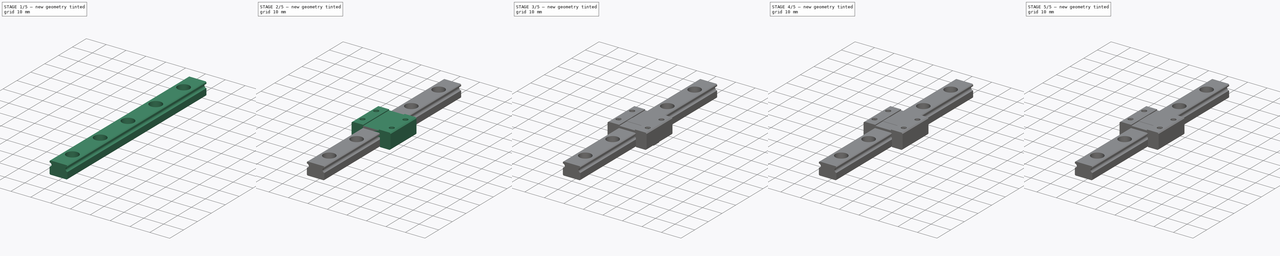
[diagram: build sequence overview — one tinted view per stage of 5, left to right]
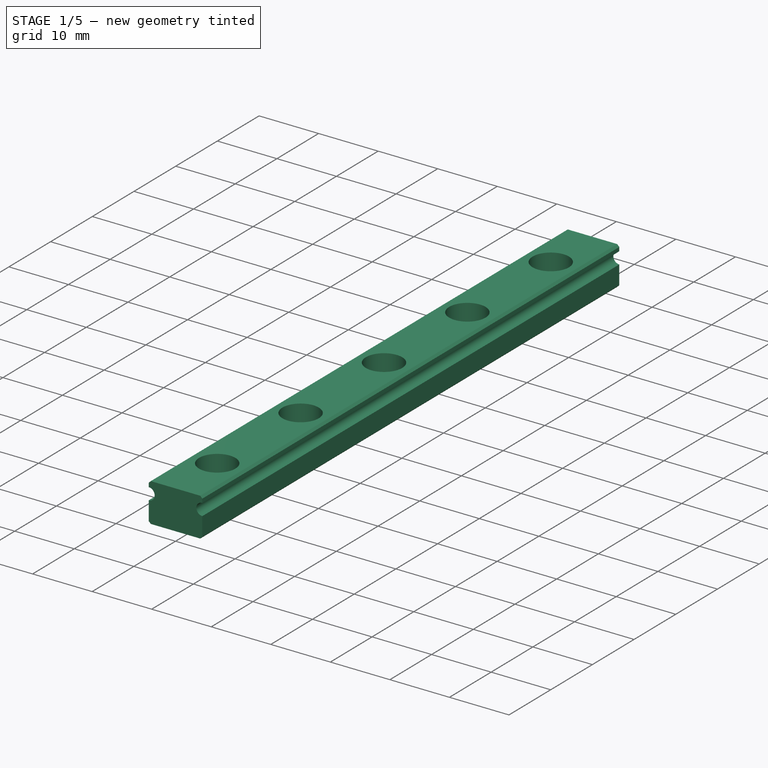
[diagram: stage 1 of 5 — iso view after this stage's code; geometry added in this stage tinted green]
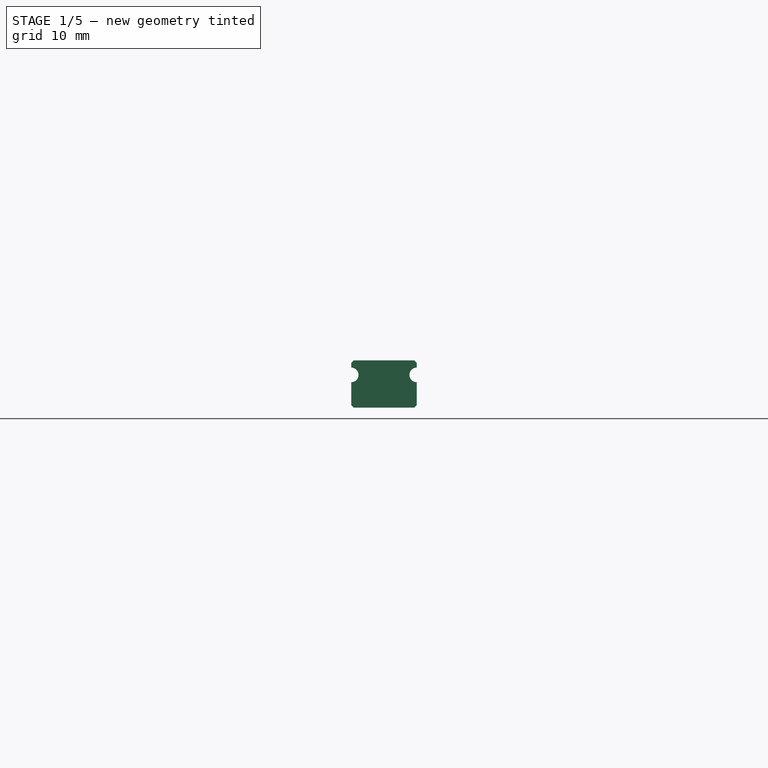
[diagram: stage 1 of 5 — front view after this stage's code; geometry added in this stage tinted green]
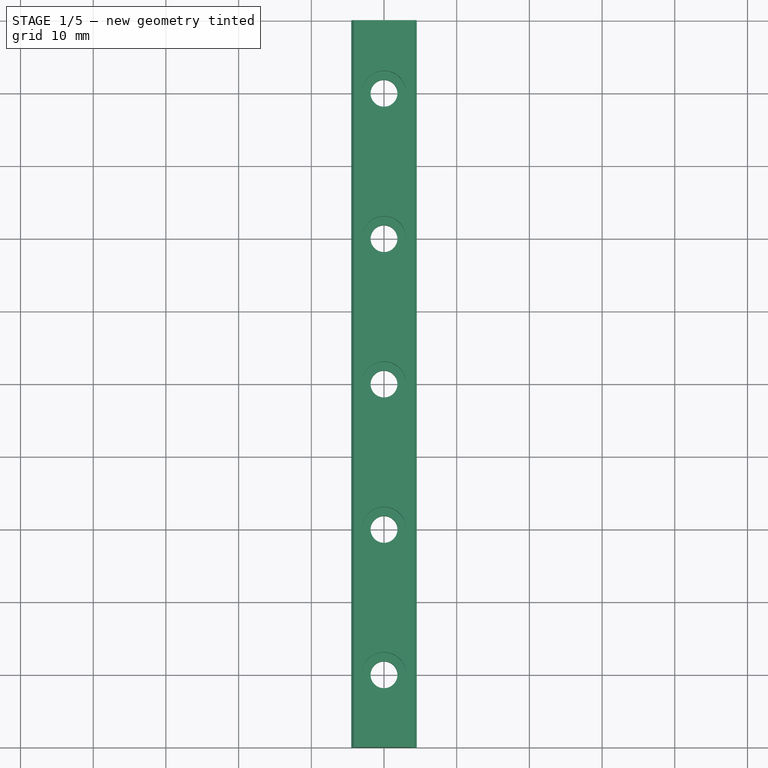
[diagram: stage 1 of 5 — top view after this stage's code; geometry added in this stage tinted green]
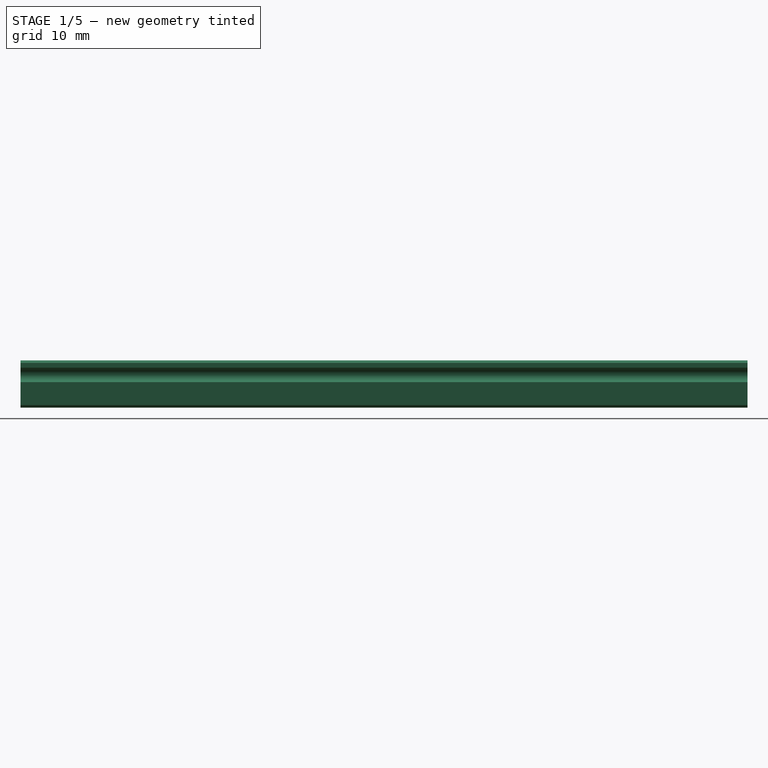
[diagram: stage 1 of 5 — right view after this stage's code; geometry added in this stage tinted green]
FCSTD DOCUMENT  (FreeCAD 0.20R29177 (Git))
Label: MGN9
License: All rights reserved
LicenseURL: http://en.wikipedia.org/wiki/All_rights_reserved
objects: PartDesign::Chamfer×7, PartDesign::Pad×6, PartDesign::Body×6, Sketcher::SketchObject×5, PartDesign::ShapeBinder×5, PartDesign::CoordinateSystem×4, App::DocumentObjectGroup×3, App::Part×3, PartDesign::Hole×2, App::Link×2, App::FeaturePython×1
note: 50 computed .brp shape members not serialized (recipe doc carries the construction recipe); baked Part::Feature solids carry a one-line shape summary decoded from their .brp

FEATURE [Sketcher::SketchObject] Sketch
  FullyConstrained = true
  MapMode = 5
  Placement = pos=(0,0,0) rot=(1,0,0;1.5708rad)
  Support = -> [XZ_Plane001]
  sketch-geometry (8):
    g0: LineSegment StartX=-4.5 StartY=6.5 StartZ=0 EndX=4.5 EndY=6.5 EndZ=0
    g1: LineSegment StartX=4.5 StartY=6.5 StartZ=0 EndX=4.5 EndY=5.5 EndZ=0
    g2: LineSegment StartX=4.5 StartY=0 StartZ=0 EndX=-4.5 EndY=0 EndZ=0
    g3: LineSegment StartX=-4.5 StartY=0 StartZ=0 EndX=-4.5 EndY=3.5 EndZ=0
    g4: ArcOfCircle CenterX=-4.5 CenterY=4.5 CenterZ=0 NormalX=0 NormalY=0 NormalZ=1 AngleXU=0 Radius=1 StartAngle=4.71239 EndAngle=7.85398
    g5: LineSegment StartX=-4.5 StartY=5.5 StartZ=0 EndX=-4.5 EndY=6.5 EndZ=0
    g6: ArcOfCircle CenterX=4.5 CenterY=4.5 CenterZ=0 NormalX=0 NormalY=0 NormalZ=1 AngleXU=0 Radius=1 StartAngle=1.5708 EndAngle=4.71239
    g7: LineSegment StartX=4.5 StartY=3.5 StartZ=0 EndX=4.5 EndY=0 EndZ=0
  constraints (22):
    c: Coincident(g0,g1)
    c: Coincident(g7,g2)
    c: Coincident(g2,g3)
    c: Coincident(g5,g0)
    c: Symmetric(g2,g7,g-2)
    c: Symmetric(g0,g0,g-2)
    c: Vertical(g3)
    c: DistanceX(g2,g2) = 9
    c: DistanceY(g3,g5) = 6.5
    c: PointOnObject(g2,g-1)
    c: PointOnObject(g4,g3)
    c: DistanceY(g-1,g4) = 4.5
    c: Radius(g4) = 1
    c: Coincident(g3,g4)
    c: Coincident(g5,g4)
    c: Vertical(g5)
    c: Vertical(g4,g3)
    c: PointOnObject(g6,g1)
    c: Coincident(g1,g6)
    c: Coincident(g7,g6)
    c: Symmetric(g4,g6,g-2)
    c: Symmetric(g3,g6,g-2)
FEATURE [Sketcher::SketchObject] Sketch001  label="UnitSketch"
  FullyConstrained = true
  MapMode = 5
  Placement = pos=(0,0,0) rot=(1,0,0;1.5708rad)
  Support = -> [XZ_Plane002]
  sketch-geometry (12):
    g0: LineSegment StartX=-10 StartY=8 StartZ=0 EndX=-4 EndY=8 EndZ=0
    g1: LineSegment StartX=10 StartY=8 StartZ=0 EndX=10 EndY=0 EndZ=0
    g2: LineSegment StartX=10 StartY=0 StartZ=0 EndX=4.5 EndY=0 EndZ=0
    g3: LineSegment StartX=-10 StartY=0 StartZ=0 EndX=-10 EndY=8 EndZ=0
    g4: LineSegment StartX=-4.5 StartY=4.5 StartZ=0 EndX=4.5 EndY=4.5 EndZ=0
    g5: LineSegment StartX=4.5 StartY=4.5 StartZ=0 EndX=4.5 EndY=0 EndZ=0
    g6: LineSegment StartX=-4.5 StartY=0 StartZ=0 EndX=-4.5 EndY=4.5 EndZ=0
    g7: LineSegment StartX=-4.5 StartY=0 StartZ=0 EndX=-10 EndY=0 EndZ=0
    g8: LineSegment StartX=4 StartY=8 StartZ=0 EndX=4 EndY=7.55 EndZ=0
    g9: LineSegment StartX=4 StartY=7.55 StartZ=0 EndX=-4 EndY=7.55 EndZ=0
    g10: LineSegment StartX=-4 StartY=7.55 StartZ=0 EndX=-4 EndY=8 EndZ=0
    g11: LineSegment StartX=4 StartY=8 StartZ=0 EndX=10 EndY=8 EndZ=0
  constraints (31):
    c: Coincident(g11,g1)
    c: Coincident(g1,g2)
    c: Coincident(g7,g3)
    c: Coincident(g3,g0)
    c: Symmetric(g7,g1,g-2)
    c: Symmetric(g0,g11,g-2)
    c: PointOnObject(g7,g-1)
    c: DistanceX(g7,g2) = 20
    c: DistanceY(g3,g3) = 8
    c: Vertical(g3)
    c: Coincident(g4,g5)
    c: Coincident(g6,g4)
    c: Horizontal(g4)
    c: Vertical(g5)
    c: Vertical(g6)
    c: Coincident(g2,g5)
    c: DistanceX(g6,g5) = 9
    c: DistanceY(g6,g6) = 4.5
    c: Symmetric(g6,g2,g-2)
    c: Coincident(g8,g9)
    c: Coincident(g9,g10)
    c: Coincident(g10,g0)
    c: Coincident(g8,g11)
    c: Symmetric(g0,g8,g-2)
    c: DistanceX(g9,g9) = 8
    c: Horizontal(g0)
    c: DistanceY(g10,g10) = 0.45
    c: Symmetric(g9,g8,g-2)
    c: Vertical(g10)
    c: Coincident(g7,g6)
    c: PointOnObject(g6,g-1)
FEATURE [Sketcher::SketchObject] Sketch002  label="CoverSketch"
  FullyConstrained = true
  MapMode = 5
  Placement = pos=(0,0,0) rot=(1,0,0;1.5708rad)
  Support = -> [XZ_Plane002]
  sketch-geometry (12):
    g0: LineSegment StartX=9.85 StartY=7.65 StartZ=0 EndX=9.85 EndY=0 EndZ=0
    g1: LineSegment StartX=9.85 StartY=0 StartZ=0 EndX=4.5 EndY=0 EndZ=0
    g2: LineSegment StartX=-9.85 StartY=0 StartZ=0 EndX=-9.85 EndY=7.65 EndZ=0
    g3: LineSegment StartX=-4.5 StartY=4.5 StartZ=0 EndX=4.5 EndY=4.5 EndZ=0
    g4: LineSegment StartX=4.5 StartY=4.5 StartZ=0 EndX=4.5 EndY=3.5 EndZ=0
    g5: LineSegment StartX=-4.5 StartY=0 StartZ=0 EndX=-4.5 EndY=1.5 EndZ=0
    g6: LineSegment StartX=-9.85 StartY=7.65 StartZ=0 EndX=9.85 EndY=7.65 EndZ=0
    g7: LineSegment StartX=-4.5 StartY=0 StartZ=0 EndX=-9.85 EndY=0 EndZ=0
    g8: ArcOfCircle CenterX=-4.5 CenterY=2.5 CenterZ=0 NormalX=0 NormalY=0 NormalZ=1 AngleXU=0 Radius=1 StartAngle=4.71239 EndAngle=7.85398
    g9: ArcOfCircle CenterX=4.5 CenterY=2.5 CenterZ=0 NormalX=0 NormalY=0 NormalZ=1 AngleXU=0 Radius=1 StartAngle=1.5708 EndAngle=4.71239
    g10: LineSegment StartX=-4.5 StartY=3.5 StartZ=0 EndX=-4.5 EndY=4.5 EndZ=0
    g11: LineSegment StartX=4.5 StartY=1.5 StartZ=0 EndX=4.5 EndY=0 EndZ=0
  constraints (32):
    c: Coincident(g6,g0)
    c: Coincident(g0,g1)
    c: Coincident(g7,g2)
    c: Vertical(g2)
    c: Coincident(g3,g4)
    c: Coincident(g10,g3)
    c: Vertical(g5)
    c: Coincident(g1,g11)
    c: Coincident(g5,g7)
    c: Symmetric(g2,g0,g-2)
    c: Symmetric(g5,g1,g-2)
    c: Symmetric(g3,g3,g-2)
    c: PointOnObject(g5,g-1)
    c: PointOnObject(g2,g-1)
    c: DistanceX(g3,g3) = 9
    c: DistanceY(g5,g10) = 4.5
    c: DistanceY(g2,g2) = 7.65
    c: Coincident(g6,g2)
    c: DistanceX(g6,g6) = 19.7
    c: Symmetric(g2,g0,g-2)
    c: PointOnObject(g8,g5)
    c: PointOnObject(g9,g4)
    c: Coincident(g5,g8)
    c: Coincident(g10,g8)
    c: Coincident(g4,g9)
    c: Coincident(g11,g9)
    c: Vertical(g8,g5)
    c: Vertical(g10)
    c: Symmetric(g8,g4,g-2)
    c: Symmetric(g9,g5,g-2)
    c: DistanceY(g5,g8) = 2.5
    c: Radius(g8) = 1
FEATURE [PartDesign::CoordinateSystem] LCS_Origin
  AttacherType = Attacher::AttachEngine3D
  MapMode = 2
  Support = -> [X_Axis008]
FEATURE [App::FeaturePython] Variables  # WARN: FeaturePython — macro-defined, semantics opaque (R4)
  Length = 100
  Position = 0
  Type = App::PropertyContainer
FEATURE [App::DocumentObjectGroup] Constraints
FEATURE [App::DocumentObjectGroup] Configurations
FEATURE [PartDesign::Pad] Pad
  Direction = (0,-1,-2e-16)
  Length = 100
  Length2 = 10
  Midplane = true
  Placement = pos=(0,0,0) rot=(1,0,0;1.5708rad)
  Profile = -> Sketch
  ReferenceAxis = -> Sketch [N_Axis]
  Type = 0
  expr: Length = <<Variables>>.Length
FEATURE [PartDesign::Body] Body002  label="Returner001"
  Group = -> [ShapeBinder001,Pad002,Chamfer002]
  Origin = -> Origin004
  Placement = pos=(0,9.4,0) rot=(0,0,1;0rad)
  Tip = -> Chamfer002
FEATURE [PartDesign::Chamfer] Chamfer003
  Angle = 45
  Base = -> Pad [Edge2,Edge11,Edge14,Edge1]
  BaseFeature = -> Pad
  ChamferType = 0
  FlipDirection = false
  Placement = pos=(0,0,0) rot=(1,0,0;1.5708rad)
  Size = 0.35
  Size2 = 1
  SupportTransform = false
  UseAllEdges = false
FEATURE [PartDesign::Body] Body001  label="UnitBody"
  Group = -> [ShapeBinder,Pad001,Chamfer001,Sketch003,Hole]
  Origin = -> Origin003
  Tip = -> Hole
FEATURE [PartDesign::CoordinateSystem] LCS_RailPartOrigin
  AttacherType = Attacher::AttachEngine3D
  MapMode = 3
  Placement = pos=(0,0,0) rot=(0,0,-1;1.5708rad)
  Support = -> [Y_Axis]
FEATURE [PartDesign::CoordinateSystem] LCS_RailPartTop
  AttacherType = Attacher::AttachEngine3D
  AttachmentOffset = pos=(0,0,6.5) rot=(0,0,1;0rad)
  MapMode = 3
  Placement = pos=(-7e-16,7e-16,6.5) rot=(0,0,-1;1.5708rad)
  Support = -> [Y_Axis]
FEATURE [PartDesign::CoordinateSystem] LCS_UnitPartOrigin
  AttacherType = Attacher::AttachEngine3D
  AttachmentOffset = pos=(0,0,4.5) rot=(0,0,1;0rad)
  MapMode = 3
  Placement = pos=(-5e-16,5e-16,4.5) rot=(0,0,-1;1.5708rad)
  Support = -> [Y_Axis002]
FEATURE [App::Part] Part001  label="Unit"
  Group = -> [Sketch001,Sketch002,Body001,Body002,Body003,Body004,Body005,LCS_UnitPartOrigin]
  Origin = -> Origin002
FEATURE [App::Link] Rail  label="Rail001"
  AssemblyType = Part::Link
  AttachedBy = #LCS_RailPartOrigin
  AttachedTo = Parent Assembly#LCS_Origin
  LinkPlacement = pos=(0,0,0) rot=(0,0,1;1.5708rad)
  LinkedObject = -> Part
  Placement = pos=(0,0,0) rot=(0,0,1;1.5708rad)
  SolverId = Asm4EE
  expr: Placement = LCS_Origin.Placement * AttachmentOffset * LCS_RailPartOrigin.Placement ^ -1
FEATURE [App::Link] Unit  label="Unit001"
  AssemblyType = Part::Link
  AttachedBy = #LCS_UnitPartOrigin
  AttachedTo = Rail#LCS_RailPartTop
  LinkPlacement = pos=(0,0,2) rot=(0,0,1;1.5708rad)
  LinkedObject = -> Part001
  Placement = pos=(0,0,2) rot=(0,0,1;1.5708rad)
  SolverId = Asm4EE
  expr: .AttachmentOffset.Base.x = <<Variables>>.Position
  expr: Placement = Rail.Placement * LCS_RailPartTop.Placement * AttachmentOffset * LCS_UnitPartOrigin.Placement ^ -1
FEATURE [App::Part] Assembly
  AssemblyType = Part::Link
  Group = -> [LCS_Origin,Variables,Constraints,Configurations,Rail,Unit]
  Origin = -> Origin008
  Type = Assembly
FEATURE [Sketcher::SketchObject] Sketch004
  AttachmentOffset = pos=(0,0,-6.5) rot=(0,0,1;0rad)
  FullyConstrained = true
  MapMode = 3
  Placement = pos=(-7e-16,7e-16,6.5) rot=(0.707107,0.707107,0;3.14159rad)
  Support = -> [Y_Axis001]
  sketch-geometry (19):
    g0: Circle CenterX=0 CenterY=0 CenterZ=0 NormalX=0 NormalY=0 NormalZ=1 AngleXU=0 Radius=1.5
    g1: Circle CenterX=-20 CenterY=0 CenterZ=0 NormalX=0 NormalY=0 NormalZ=1 AngleXU=0 Radius=1.5
    g2: Circle CenterX=-40 CenterY=0 CenterZ=0 NormalX=0 NormalY=0 NormalZ=1 AngleXU=0 Radius=1.5
    g3: Circle CenterX=-60 CenterY=0 CenterZ=0 NormalX=0 NormalY=0 NormalZ=1 AngleXU=0 Radius=1.5
    g4: Circle CenterX=-80 CenterY=0 CenterZ=0 NormalX=0 NormalY=0 NormalZ=1 AngleXU=0 Radius=1.5
    g5: Circle CenterX=-100 CenterY=0 CenterZ=0 NormalX=0 NormalY=0 NormalZ=1 AngleXU=0 Radius=1.5
    g6: Circle CenterX=-120 CenterY=0 CenterZ=0 NormalX=0 NormalY=0 NormalZ=1 AngleXU=0 Radius=1.5
    g7: Circle CenterX=-140 CenterY=0 CenterZ=0 NormalX=0 NormalY=0 NormalZ=1 AngleXU=0 Radius=1.5
    g8: Circle CenterX=-160 CenterY=0 CenterZ=0 NormalX=0 NormalY=0 NormalZ=1 AngleXU=0 Radius=1.5
    g9: Circle CenterX=-180 CenterY=0 CenterZ=0 NormalX=0 NormalY=0 NormalZ=1 AngleXU=0 Radius=1.5
    g10: Circle CenterX=20 CenterY=0 CenterZ=0 NormalX=0 NormalY=0 NormalZ=1 AngleXU=0 Radius=1.5
    g11: Circle CenterX=40 CenterY=0 CenterZ=0 NormalX=0 NormalY=0 NormalZ=1 AngleXU=0 Radius=1.5
    g12: Circle CenterX=60 CenterY=0 CenterZ=0 NormalX=0 NormalY=0 NormalZ=1 AngleXU=0 Radius=1.5
    g13: Circle CenterX=80 CenterY=0 CenterZ=0 NormalX=0 NormalY=0 NormalZ=1 AngleXU=0 Radius=1.5
    g14: Circle CenterX=100 CenterY=0 CenterZ=0 NormalX=0 NormalY=0 NormalZ=1 AngleXU=0 Radius=1.5
    g15: Circle CenterX=120 CenterY=0 CenterZ=0 NormalX=0 NormalY=0 NormalZ=1 AngleXU=0 Radius=1.5
    g16: Circle CenterX=140 CenterY=0 CenterZ=0 NormalX=0 NormalY=0 NormalZ=1 AngleXU=0 Radius=1.5
    g17: Circle CenterX=160 CenterY=0 CenterZ=0 NormalX=0 NormalY=0 NormalZ=1 AngleXU=0 Radius=1.5
    g18: Circle CenterX=180 CenterY=0 CenterZ=0 NormalX=0 NormalY=0 NormalZ=1 AngleXU=0 Radius=1.5
  constraints (30):
    c: PointOnObject(g1,g-1)
    c: PointOnObject(g2,g-1)
    c: PointOnObject(g3,g-1)
    c: PointOnObject(g4,g-1)
    c: PointOnObject(g5,g-1)
    c: PointOnObject(g6,g-1)
    c: PointOnObject(g7,g-1)
    c: PointOnObject(g8,g-1)
    c: PointOnObject(g9,g-1)
    c: Equal(g0, g1-g18) x18
    c: Diameter(g0) = 3
    c: Symmetric(g9,g18,g-2)
    c: Symmetric(g8,g17,g-2)
    c: DistanceX(g9,g8) = 20
    c: Symmetric(g7,g16,g-2)
    c: DistanceX(g8,g7) = 20
    c: Symmetric(g6,g15,g-2)
    c: DistanceX(g7,g6) = 20
    c: Symmetric(g14,g5,g-2)
    c: DistanceX(g6,g5) = 20
    c: Symmetric(g4,g13,g-2)
    c: DistanceX(g5,g4) = 20
    c: Symmetric(g12,g3,g-2)
    c: DistanceX(g4,g3) = 20
    c: Symmetric(g11,g2,g-2)
    c: DistanceX(g3,g2) = 20
    c: Symmetric(g10,g1,g-2)
    c: DistanceX(g2,g1) = 20
    c: DistanceX(g1,g0) = 20
    c: Coincident(g0,g-1)
FEATURE [PartDesign::Hole] Hole001
  BaseFeature = -> Chamfer003
  CustomThreadClearance = 0
  Depth = 733.603
  DepthType = 1
  Diameter = 3.7
  DrillForDepth = false
  DrillPoint = 1
  DrillPointAngle = 118
  HoleCutCountersinkAngle = 90
  HoleCutCustomValues = false
  HoleCutDepth = 3.06
  HoleCutDiameter = 6.1
  HoleCutType = 1
  ModelThread = false
  Placement = pos=(0,0,0) rot=(1,0,0;1.5708rad)
  Profile = -> Sketch004
  Reversed = true
  Tapered = false
  TaperedAngle = 90
  ThreadClass = 0
  ThreadDepth = 733.603
  ThreadDepthType = 0
  ThreadDirection = 0
  ThreadFit = 0
  ThreadSize = 0
  ThreadType = 0
  Threaded = false
  UseCustomThreadClearance = false
FEATURE [PartDesign::Body] Body  label="RailBody"
  Group = -> [Sketch,Pad,Sketch004,Chamfer003,Hole001]
  Origin = -> Origin001
  Tip = -> Hole001
FEATURE [App::Part] Part  label="Rail"
  Group = -> [Body,LCS_RailPartOrigin,LCS_RailPartTop]
  Origin = -> Origin
FEATURE [App::DocumentObjectGroup] Parts
  Group = -> [Part,Part001]
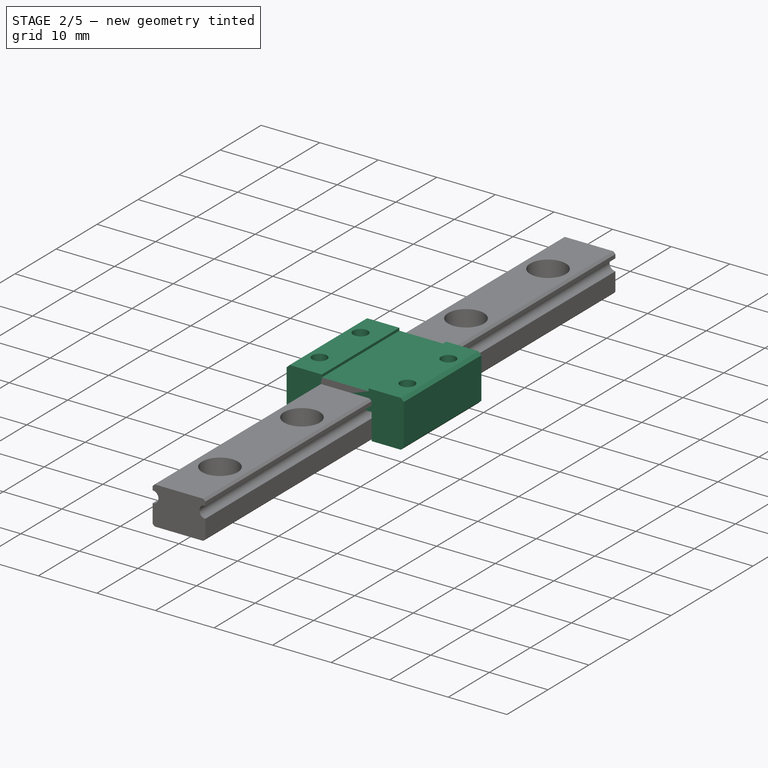
[diagram: stage 2 of 5 — iso view after this stage's code; geometry added in this stage tinted green]
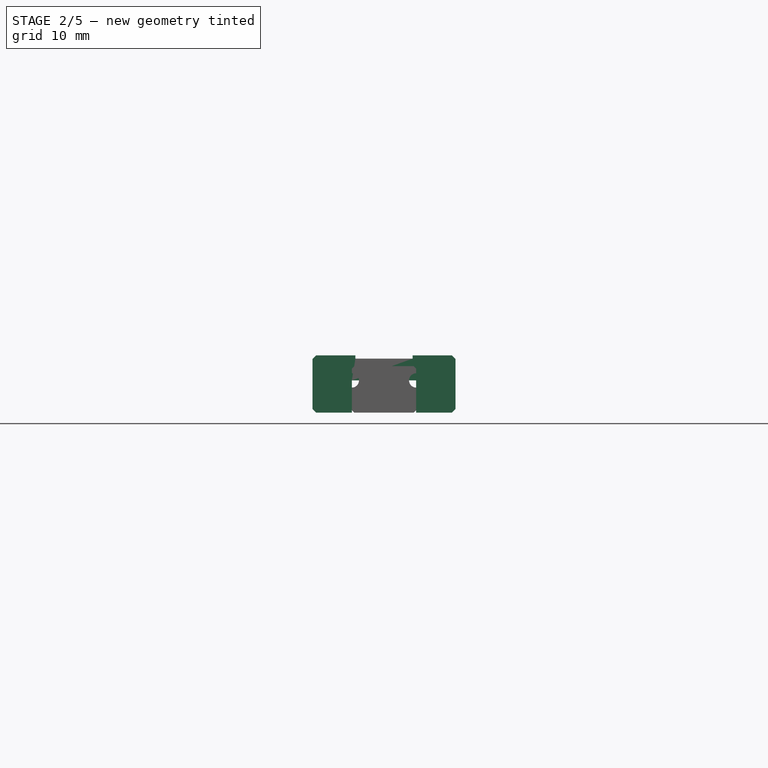
[diagram: stage 2 of 5 — front view after this stage's code; geometry added in this stage tinted green]
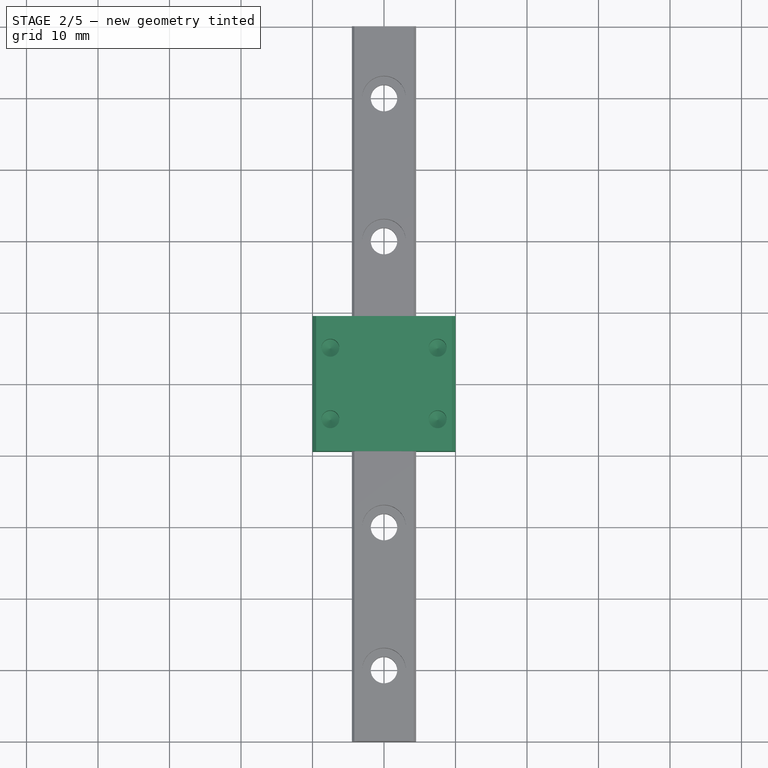
[diagram: stage 2 of 5 — top view after this stage's code; geometry added in this stage tinted green]
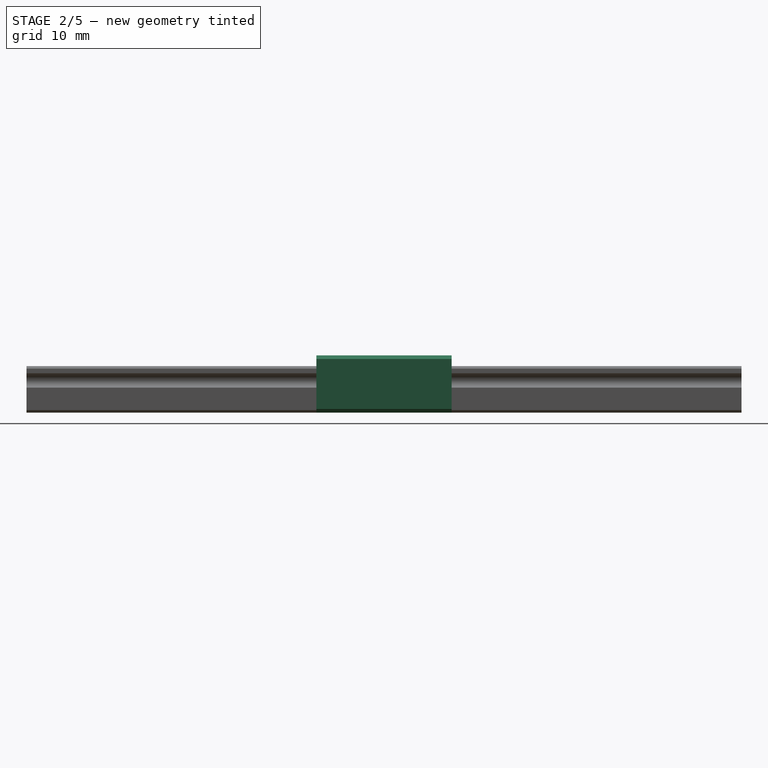
[diagram: stage 2 of 5 — right view after this stage's code; geometry added in this stage tinted green]
FEATURE [PartDesign::ShapeBinder] ShapeBinder
  Placement = pos=(0,0,0) rot=(1,0,0;1.5708rad)
  Support = -> [Sketch001]
  TraceSupport = false
FEATURE [PartDesign::Pad] Pad001
  Direction = (0,1,2e-16)
  Length = 18.9
  Length2 = 10
  Midplane = true
  Placement = pos=(0,0,0) rot=(1,0,0;1.5708rad)
  Profile = -> ShapeBinder
  Type = 0
FEATURE [PartDesign::Chamfer] Chamfer001
  Angle = 45
  Base = -> Pad001 [Edge5,Edge20,Edge23,Edge2]
  BaseFeature = -> Pad001
  ChamferType = 0
  FlipDirection = false
  Placement = pos=(0,0,0) rot=(1,0,0;1.5708rad)
  Size = 0.5
  Size2 = 1
  SupportTransform = false
  UseAllEdges = false
FEATURE [PartDesign::Body] Body005  label="wiper002"
  Group = -> [ShapeBinder004,Pad005,Chamfer006]
  Origin = -> Origin007
  Placement = pos=(0,-13.4,0) rot=(0,0,1;0rad)
  Tip = -> Chamfer006
FEATURE [Sketcher::SketchObject] Sketch003
  FullyConstrained = true
  MapMode = 5
  Placement = pos=(0,1.8e-15,8) rot=(0,0,1;3.14159rad)
  Support = -> [Chamfer001]
  sketch-geometry (4):
    g0: Circle CenterX=-7.5 CenterY=5 CenterZ=0 NormalX=0 NormalY=0 NormalZ=1 AngleXU=0 Radius=1.5
    g1: Circle CenterX=7.5 CenterY=5 CenterZ=0 NormalX=0 NormalY=0 NormalZ=1 AngleXU=0 Radius=1.5
    g2: Circle CenterX=-7.5 CenterY=-5 CenterZ=0 NormalX=0 NormalY=0 NormalZ=1 AngleXU=0 Radius=1.5
    g3: Circle CenterX=7.5 CenterY=-5 CenterZ=0 NormalX=0 NormalY=0 NormalZ=1 AngleXU=0 Radius=1.5
  constraints (9):
    c: Symmetric(g0,g2,g-1)
    c: Symmetric(g0,g1,g-2)
    c: Symmetric(g2,g3,g-2)
    c: DistanceY(g2,g0) = 10
    c: DistanceX(g0,g1) = 15
    c: Equal(g0,g1)
    c: Equal(g0,g2)
    c: Equal(g0,g3)
    c: Diameter(g0) = 3
FEATURE [PartDesign::Hole] Hole
  BaseFeature = -> Chamfer001
  CustomThreadClearance = 0
  Depth = 4.4
  DepthType = 0
  Diameter = 2.5
  DrillForDepth = false
  DrillPoint = 1
  DrillPointAngle = 118
  HoleCutCountersinkAngle = 90
  HoleCutCustomValues = false
  HoleCutDepth = 0
  HoleCutDiameter = 6.1
  HoleCutType = 0
  ModelThread = false
  Placement = pos=(0,0,0) rot=(1,0,0;1.5708rad)
  Profile = -> Sketch003
  Tapered = false
  TaperedAngle = 90
  ThreadClass = 0
  ThreadDepth = 4.4
  ThreadDepthType = 0
  ThreadDirection = 0
  ThreadFit = 0
  ThreadSize = 9
  ThreadType = 1
  Threaded = true
  UseCustomThreadClearance = false
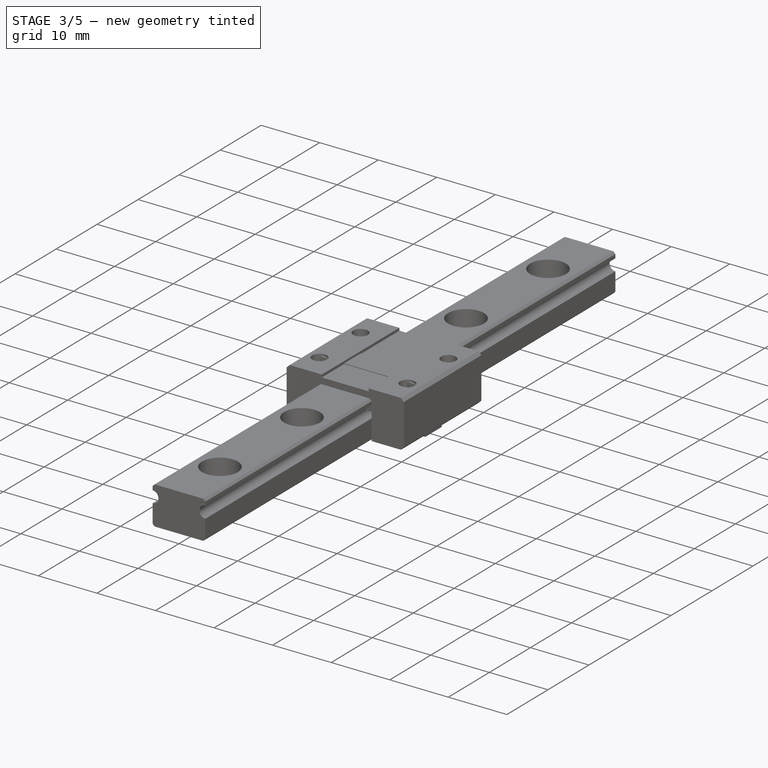
[diagram: stage 3 of 5 — iso view after this stage's code; geometry added in this stage tinted green]
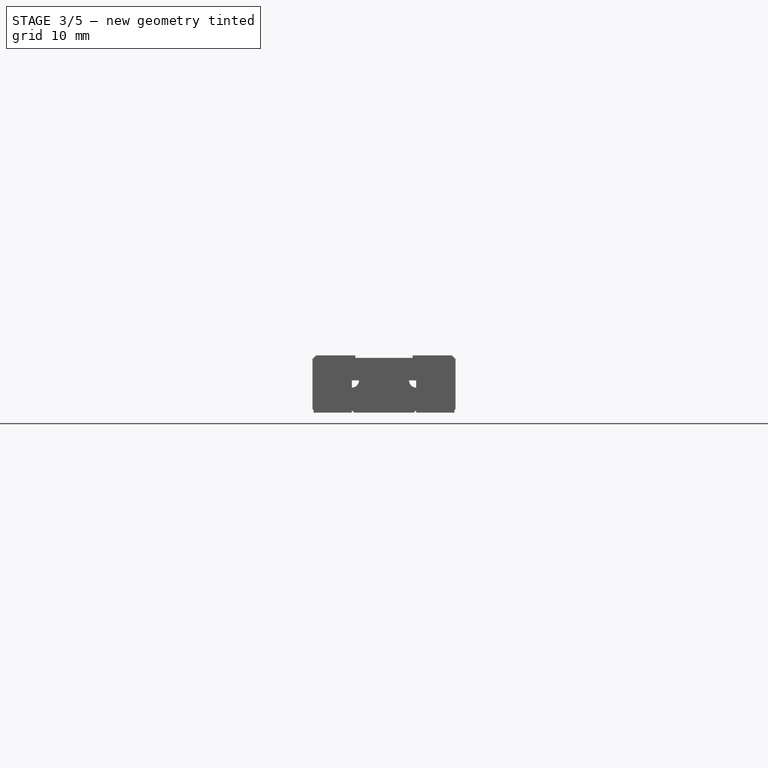
[diagram: stage 3 of 5 — front view after this stage's code; geometry added in this stage tinted green]
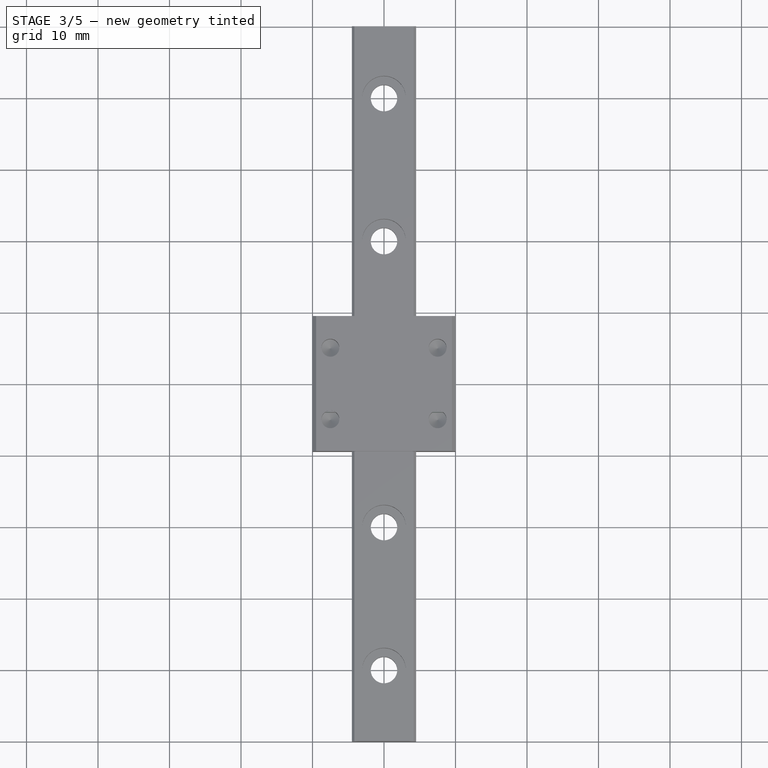
[diagram: stage 3 of 5 — top view after this stage's code; geometry added in this stage tinted green]
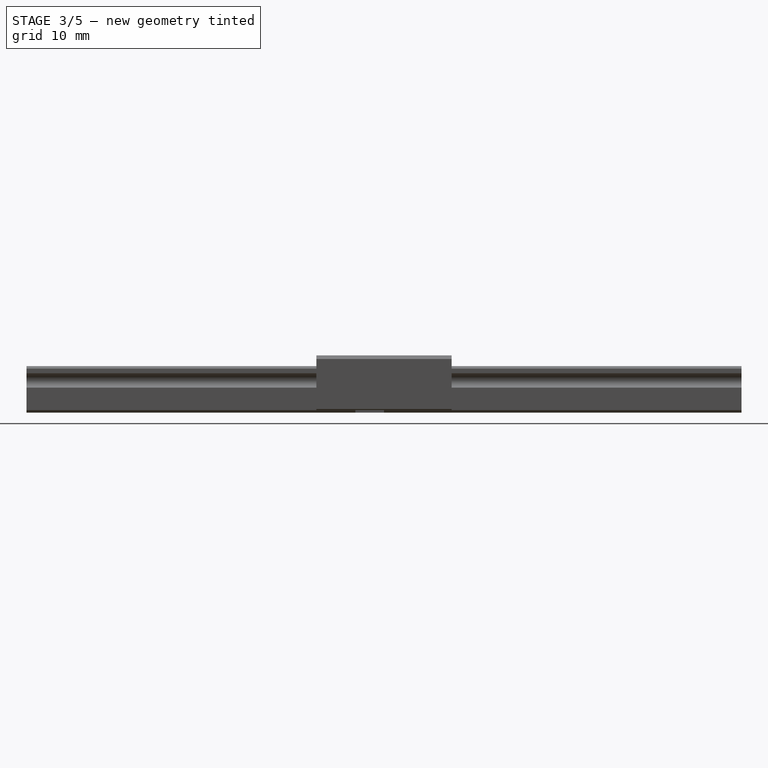
[diagram: stage 3 of 5 — right view after this stage's code; geometry added in this stage tinted green]
FEATURE [PartDesign::ShapeBinder] ShapeBinder002
  Placement = pos=(0,0,0) rot=(1,0,0;1.5708rad)
  Support = -> [Sketch002]
  TraceSupport = false
FEATURE [PartDesign::Pad] Pad003
  Direction = (0,1,2e-16)
  Length = 4
  Length2 = 10
  Placement = pos=(0,0,0) rot=(1,0,0;1.5708rad)
  Profile = -> ShapeBinder002
  Reversed = true
  Type = 0
FEATURE [PartDesign::Body] Body004  label="wiper001"
  Group = -> [ShapeBinder003,Pad004,Chamfer004]
  Origin = -> Origin006
  Placement = pos=(0,13.4,0) rot=(0,0,1;0rad)
  Tip = -> Chamfer004
FEATURE [PartDesign::ShapeBinder] ShapeBinder004
  Placement = pos=(0,0,0) rot=(1,0,0;1.5708rad)
  Support = -> [Sketch002]
  TraceSupport = false
FEATURE [PartDesign::Pad] Pad005
  Direction = (0,1,2e-16)
  Length = 1
  Length2 = 10
  Placement = pos=(0,0,0) rot=(1,0,0;1.5708rad)
  Profile = -> ShapeBinder004
  Reversed = true
  Type = 0
FEATURE [PartDesign::Body] Body003  label="Returner002"
  Group = -> [ShapeBinder002,Pad003,Chamfer,Chamfer005]
  Origin = -> Origin005
  Placement = pos=(0,-9.4,0) rot=(0,0,1;0rad)
  Tip = -> Chamfer005
FEATURE [PartDesign::Chamfer] Chamfer006
  Angle = 45
  Base = -> Pad005 [Edge5,Edge2,Edge8,Edge11]
  BaseFeature = -> Pad005
  ChamferType = 0
  FlipDirection = false
  Placement = pos=(0,0,0) rot=(1,0,0;1.5708rad)
  Size = 1
  Size2 = 1
  SupportTransform = false
  UseAllEdges = false
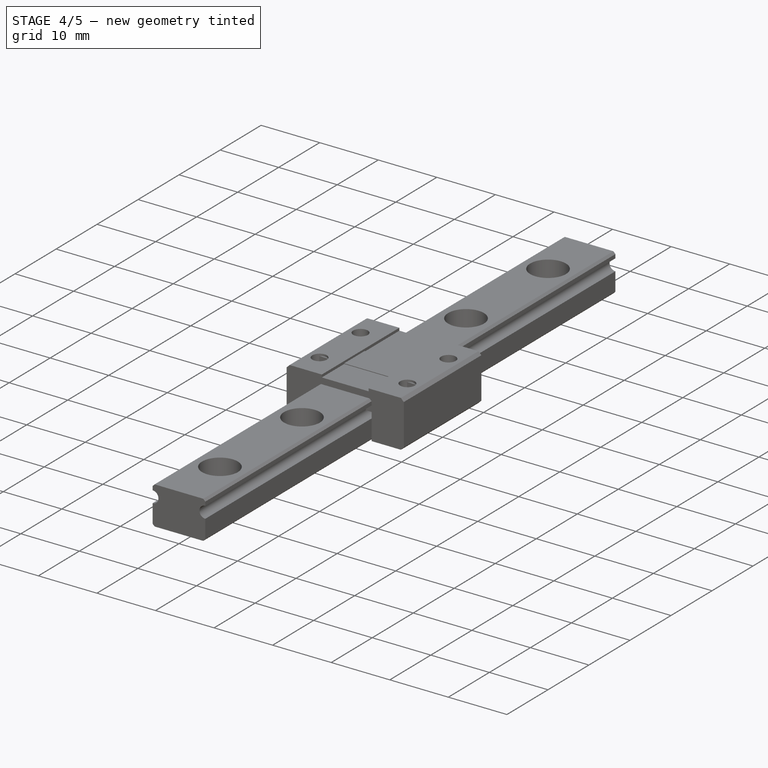
[diagram: stage 4 of 5 — iso view after this stage's code; geometry added in this stage tinted green]
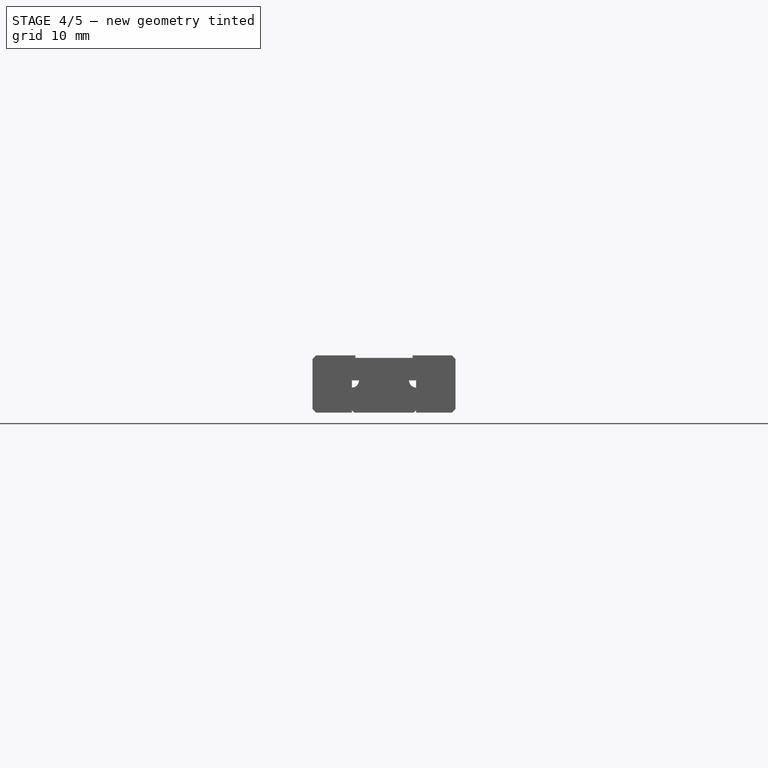
[diagram: stage 4 of 5 — front view after this stage's code; geometry added in this stage tinted green]
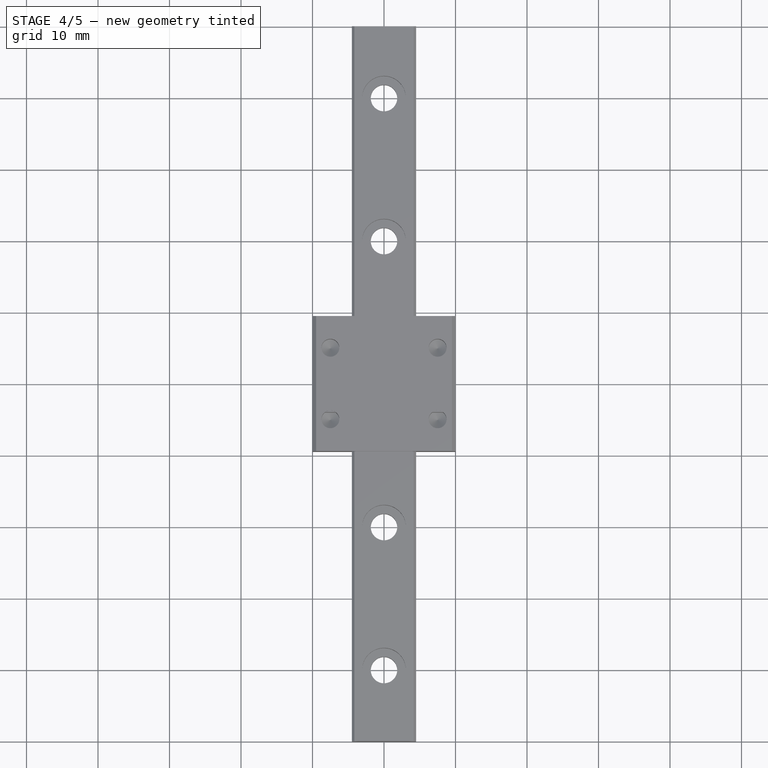
[diagram: stage 4 of 5 — top view after this stage's code; geometry added in this stage tinted green]
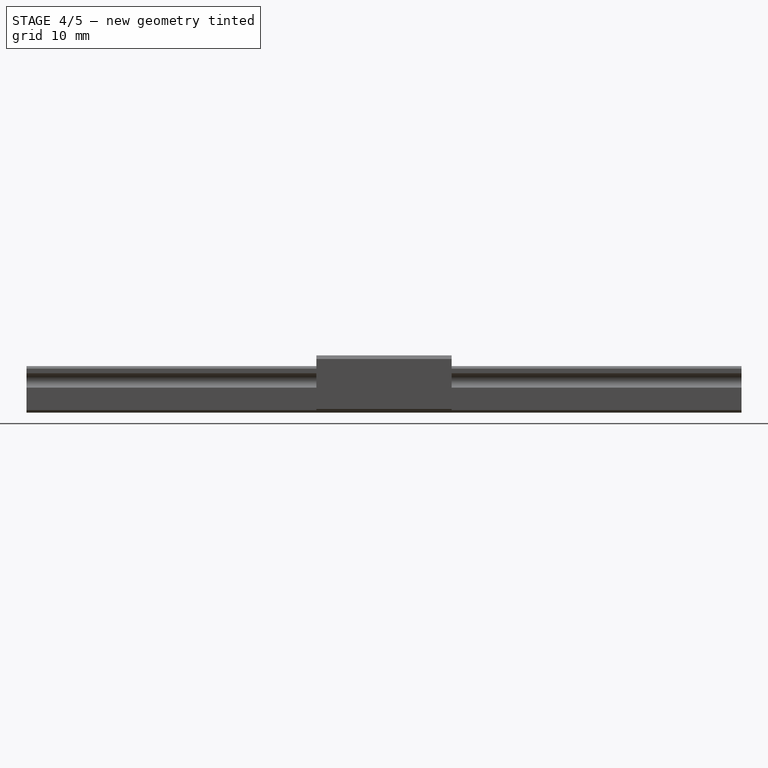
[diagram: stage 4 of 5 — right view after this stage's code; geometry added in this stage tinted green]
FEATURE [PartDesign::ShapeBinder] ShapeBinder003
  Placement = pos=(0,0,0) rot=(1,0,0;1.5708rad)
  Support = -> [Sketch002]
  TraceSupport = false
FEATURE [PartDesign::Pad] Pad004
  Direction = (0,1,2e-16)
  Length = 1
  Length2 = 10
  Placement = pos=(0,0,0) rot=(1,0,0;1.5708rad)
  Profile = -> ShapeBinder003
  Type = 0
FEATURE [PartDesign::Chamfer] Chamfer004
  Angle = 45
  Base = -> Pad004 [Edge8,Edge5,Edge11,Edge2]
  BaseFeature = -> Pad004
  ChamferType = 0
  FlipDirection = false
  Placement = pos=(0,0,0) rot=(1,0,0;1.5708rad)
  Size = 1
  Size2 = 1
  SupportTransform = false
  UseAllEdges = false
FEATURE [PartDesign::Chamfer] Chamfer005
  Angle = 45
  Base = -> Pad003 [Edge8,Edge11,Edge5,Edge2]
  BaseFeature = -> Pad003
  ChamferType = 0
  FlipDirection = false
  Placement = pos=(0,0,0) rot=(1,0,0;1.5708rad)
  Size = 1
  Size2 = 1
  SupportTransform = false
  UseAllEdges = false
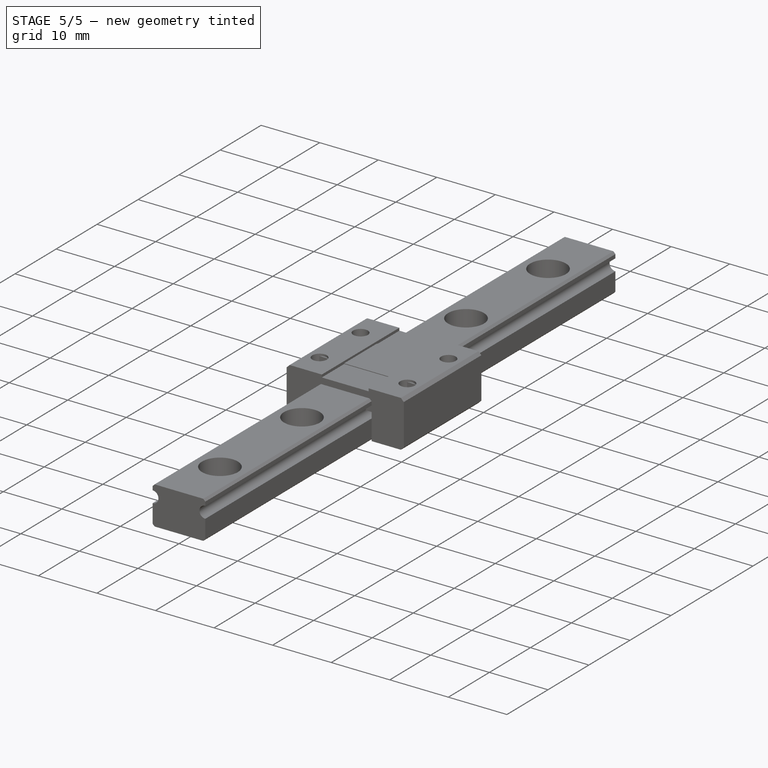
[diagram: stage 5 of 5 — iso view after this stage's code; geometry added in this stage tinted green]
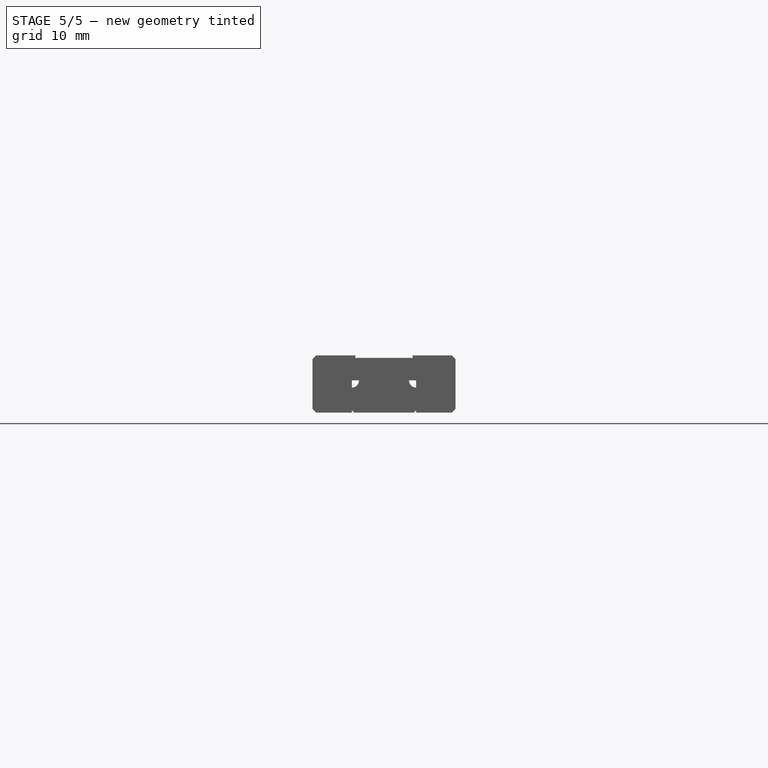
[diagram: stage 5 of 5 — front view after this stage's code; geometry added in this stage tinted green]
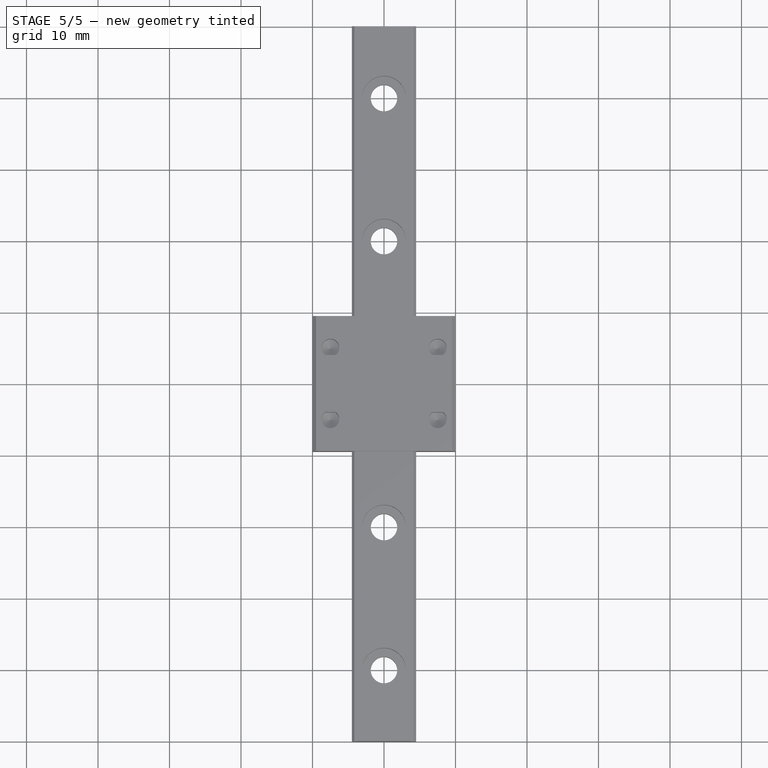
[diagram: stage 5 of 5 — top view after this stage's code; geometry added in this stage tinted green]
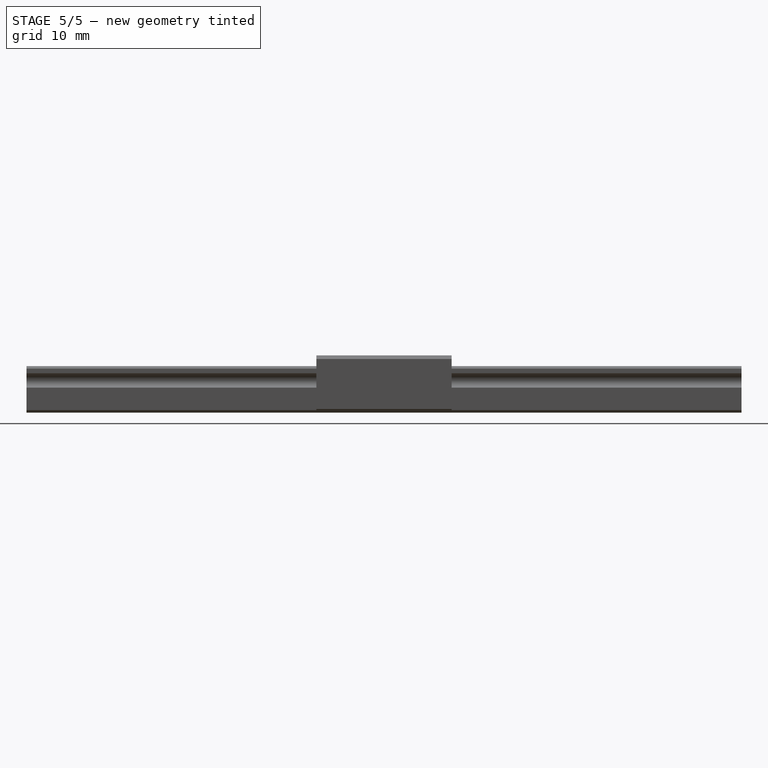
[diagram: stage 5 of 5 — right view after this stage's code; geometry added in this stage tinted green]
FEATURE [PartDesign::ShapeBinder] ShapeBinder001
  Placement = pos=(0,0,0) rot=(1,0,0;1.5708rad)
  Support = -> [Sketch002]
  TraceSupport = false
FEATURE [PartDesign::Pad] Pad002
  Direction = (0,1,2e-16)
  Length = 4
  Length2 = 10
  Placement = pos=(0,0,0) rot=(1,0,0;1.5708rad)
  Profile = -> ShapeBinder001
  Type = 0
FEATURE [PartDesign::Chamfer] Chamfer
  Angle = 45
  Base = -> Pad003 [Edge5,Edge8,Edge11,Edge2]
  BaseFeature = -> Pad003
  ChamferType = 0
  FlipDirection = false
  Placement = pos=(0,0,0) rot=(1,0,0;1.5708rad)
  Size = 1
  Size2 = 1
  SupportTransform = false
  UseAllEdges = false
FEATURE [PartDesign::Chamfer] Chamfer002
  Angle = 45
  Base = -> Pad002 [Edge8,Edge5,Edge2,Edge11]
  BaseFeature = -> Pad002
  ChamferType = 0
  FlipDirection = false
  Placement = pos=(0,0,0) rot=(1,0,0;1.5708rad)
  Size = 1
  Size2 = 1
  SupportTransform = false
  UseAllEdges = false
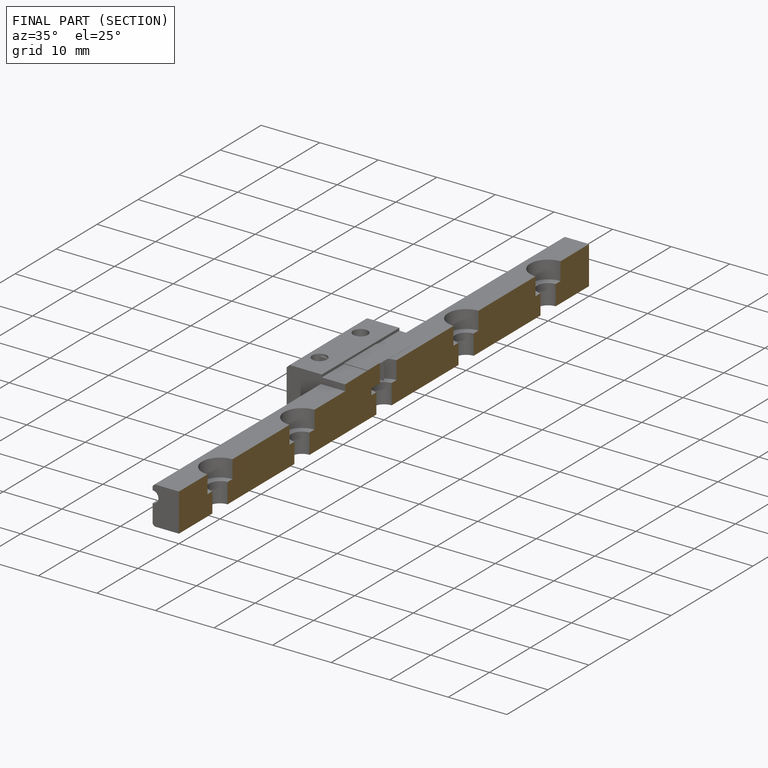
[diagram: finished part — half-section view (interior)]
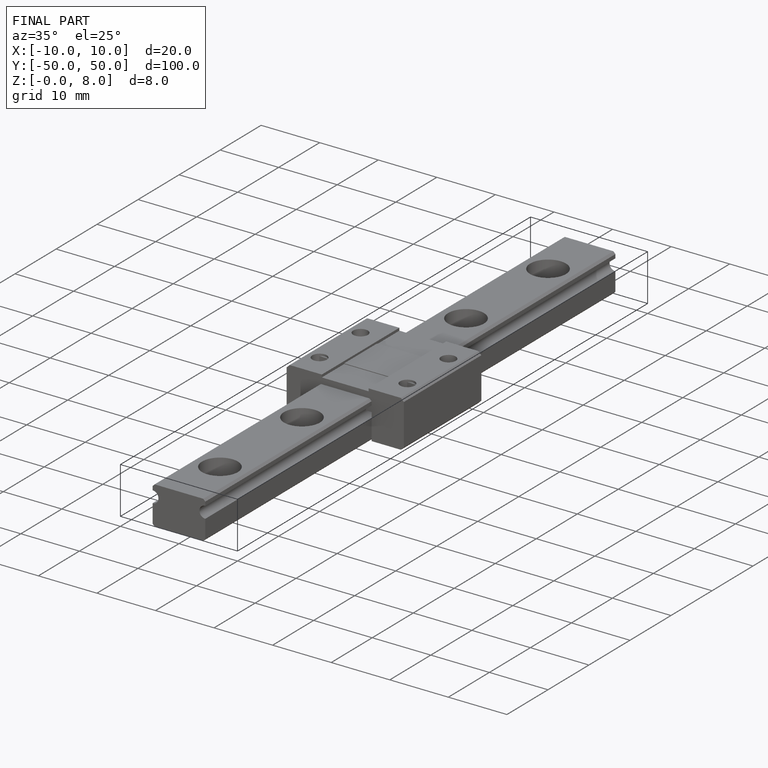
[diagram: finished part — iso view with bounding-box wireframe]
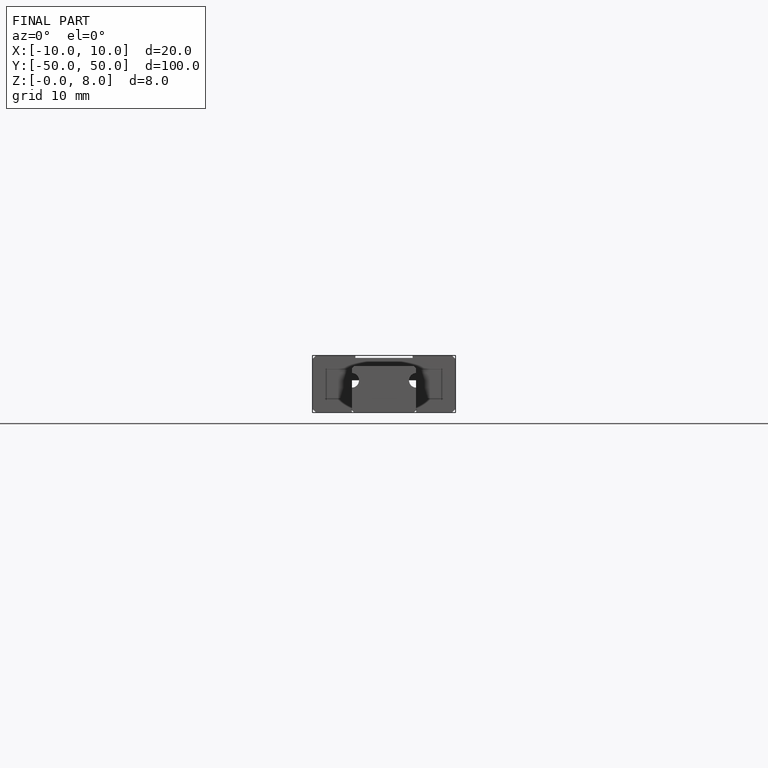
[diagram: finished part — front view with bounding-box wireframe]
